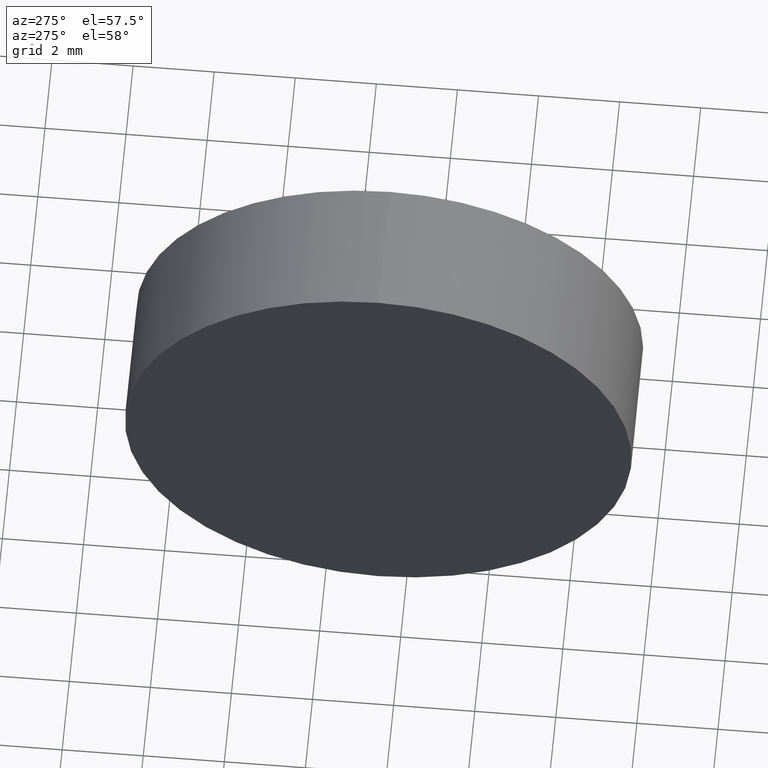
[diagram: clean part render]
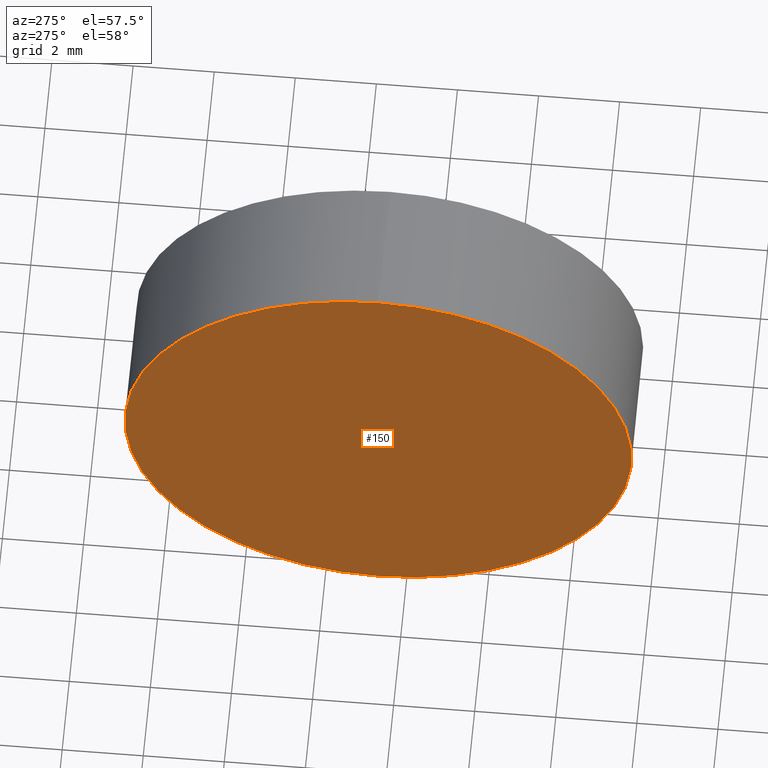
[diagram: same view with one face highlighted and labeled with its STEP entity id]
A machine part, auxiliary view. The second image highlights one B-rep face of the part: STEP entity #150.
In plain terms, the highlighted planar face has unit normal (1, 0, 0).
Its self-contained STEP definition (entity closure, byte-faithful):
#11 = DIRECTION ( 'NONE',  ( 0.0000000000000000000, 0.0000000000000000000, 1.000000000000000000 ) ) ;
#19 = CARTESIAN_POINT ( 'NONE',  ( 57.54632776745975800, 34.68901056168621700, 6.249999999999998200 ) ) ;
#21 = CARTESIAN_POINT ( 'NONE',  ( 57.54632776745975800, 34.68901056168621700, 0.0000000000000000000 ) ) ;
#22 = DIRECTION ( 'NONE',  ( 0.0000000000000000000, 0.0000000000000000000, 1.000000000000000000 ) ) ;
#23 = CARTESIAN_POINT ( 'NONE',  ( 57.54632776745975800, 34.68901056168621700, 0.0000000000000000000 ) ) ;
#29 = VERTEX_POINT ( 'NONE', #19 ) ;
#51 = VERTEX_POINT ( 'NONE', #76 ) ;
#57 = PLANE ( 'NONE',  #65 ) ;
#65 = AXIS2_PLACEMENT_3D ( 'NONE', #92, #129, #102 ) ;
#76 = CARTESIAN_POINT ( 'NONE',  ( 57.54632776745975800, 34.68901056168621700, -6.249999999999998200 ) ) ;
#77 = DIRECTION ( 'NONE',  ( -1.000000000000000000, -0.0000000000000000000, -0.0000000000000000000 ) ) ;
#86 = AXIS2_PLACEMENT_3D ( 'NONE', #21, #104, #22 ) ;
#90 = FACE_OUTER_BOUND ( 'NONE', #110, .T. ) ;
#92 = CARTESIAN_POINT ( 'NONE',  ( 57.54632776745975800, 34.68901056168621700, 0.0000000000000000000 ) ) ;
#102 = DIRECTION ( 'NONE',  ( 0.0000000000000000000, 0.0000000000000000000, -1.000000000000000000 ) ) ;
#104 = DIRECTION ( 'NONE',  ( -1.000000000000000000, -0.0000000000000000000, -0.0000000000000000000 ) ) ;
#109 = ORIENTED_EDGE ( 'NONE', *, *, #154, .T. ) ;
#110 = EDGE_LOOP ( 'NONE', ( #124, #109 ) ) ;
#112 = CIRCLE ( 'NONE', #163, 6.249999999999998200 ) ;
#124 = ORIENTED_EDGE ( 'NONE', *, *, #173, .T. ) ;
#129 = DIRECTION ( 'NONE',  ( 1.000000000000000000, 0.0000000000000000000, 0.0000000000000000000 ) ) ;
#142 = CIRCLE ( 'NONE', #86, 6.249999999999998200 ) ;
#150 = ADVANCED_FACE ( 'NONE', ( #90 ), #57, .F. ) ;
#154 = EDGE_CURVE ( 'NONE', #51, #29, #142, .T. ) ;
#163 = AXIS2_PLACEMENT_3D ( 'NONE', #23, #77, #11 ) ;
#173 = EDGE_CURVE ( 'NONE', #29, #51, #112, .T. ) ;